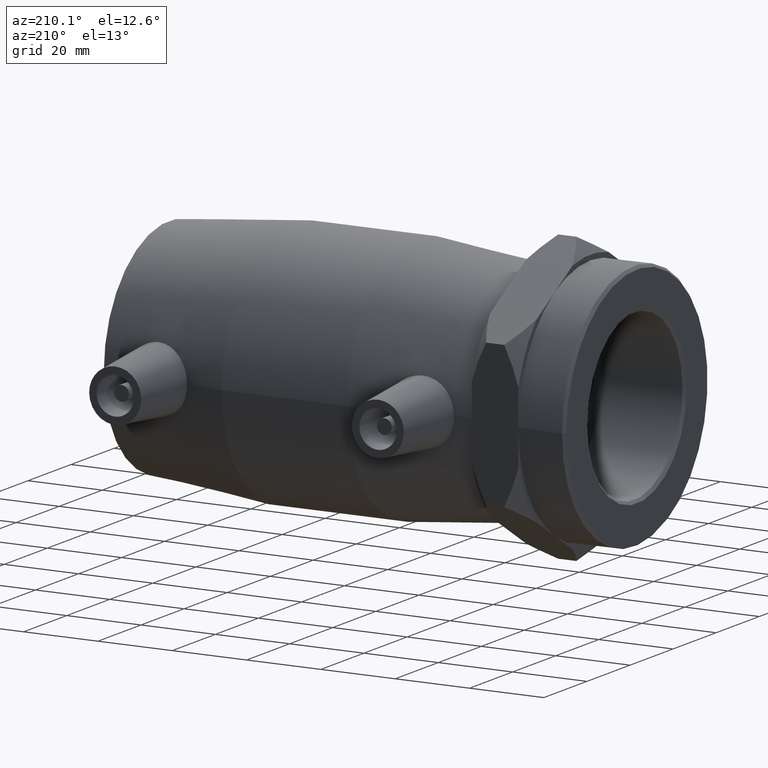
[diagram: clean part render]
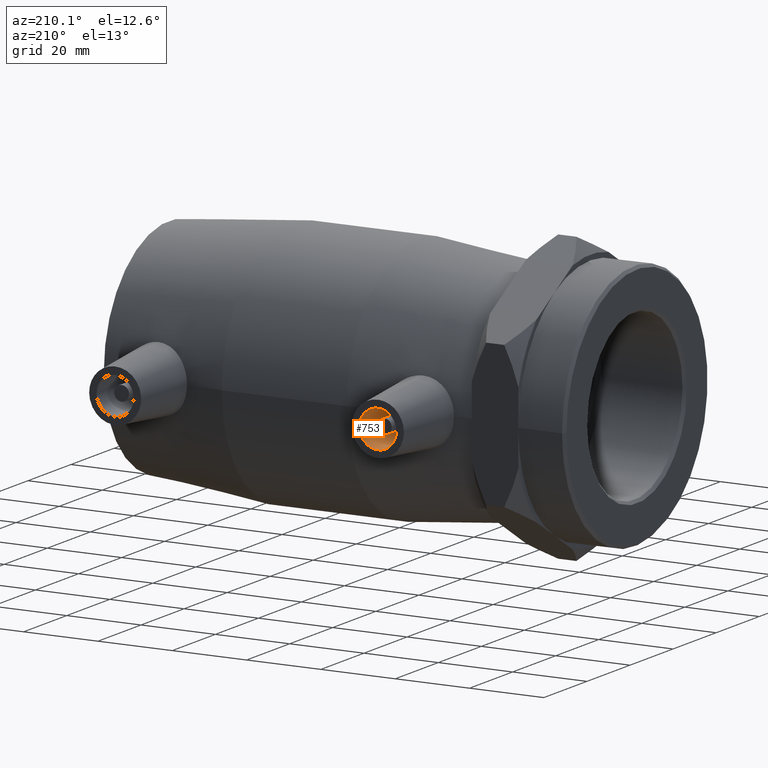
[diagram: same view with one face highlighted and labeled with its STEP entity id]
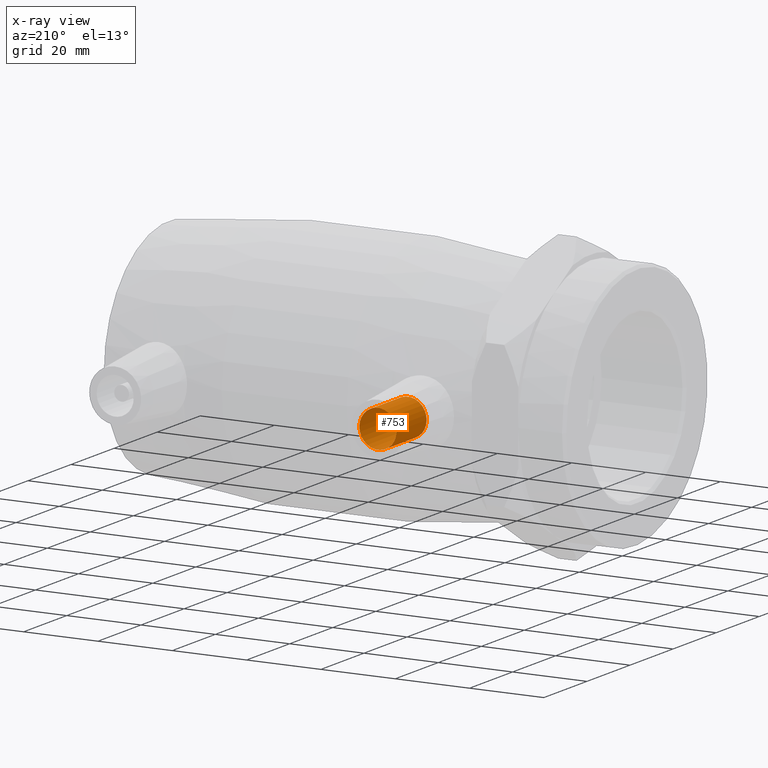
[diagram: x-ray of the same camera — body ghosted, the highlighted face saturated]
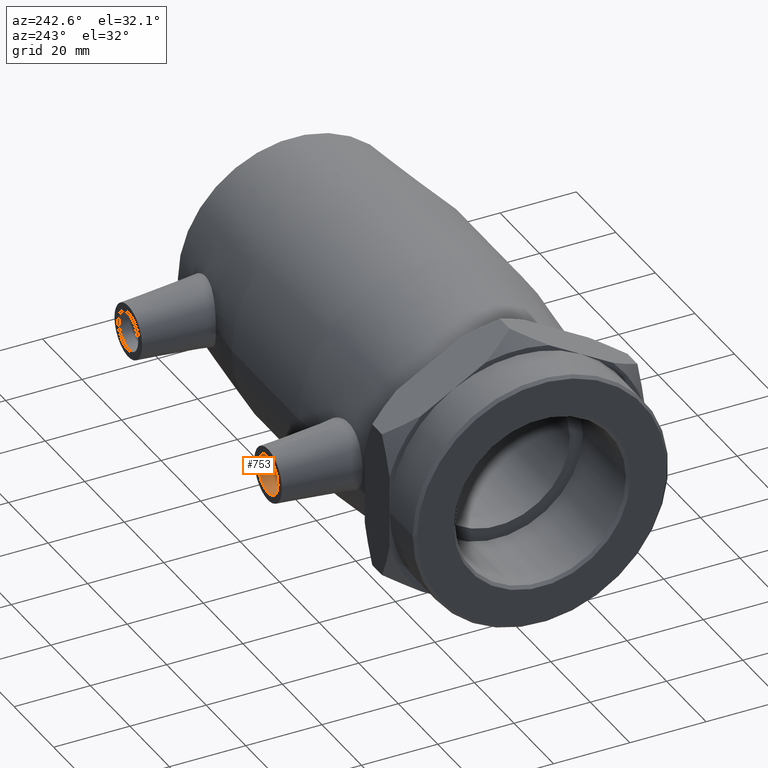
[diagram: same view with one face highlighted and labeled with its STEP entity id]
A machine part, auxiliary view. The second image highlights one B-rep face of the part: STEP entity #753.
The next image is the same camera in x-ray: the body ghosted, the highlighted face saturated — about 0% of this face is hidden behind the body in this view.
A second angle (auxiliary view) of the same face is appended — the face is thin or edge-on in the first view.
In plain terms, the highlighted cylindrical surface (bore or boss wall) has radius 5 mm, axis along (0, -1, 0).
Its self-contained STEP definition (entity closure, byte-faithful):
#96=CYLINDRICAL_SURFACE('',#845,5.);
#138=FACE_BOUND('',#264,.T.);
#194=FACE_OUTER_BOUND('',#263,.T.);
#263=EDGE_LOOP('',(#664));
#264=EDGE_LOOP('',(#665));
#327=CIRCLE('',#846,5.);
#328=CIRCLE('',#847,5.);
#396=VERTEX_POINT('',#1326);
#397=VERTEX_POINT('',#1328);
#491=EDGE_CURVE('',#396,#396,#327,.T.);
#492=EDGE_CURVE('',#397,#397,#328,.T.);
#664=ORIENTED_EDGE('',*,*,#491,.T.);
#665=ORIENTED_EDGE('',*,*,#492,.F.);
#753=ADVANCED_FACE('',(#194,#138),#96,.F.);
#845=AXIS2_PLACEMENT_3D('',#1325,#1047,#1048);
#846=AXIS2_PLACEMENT_3D('',#1327,#1049,#1050);
#847=AXIS2_PLACEMENT_3D('',#1329,#1051,#1052);
#1047=DIRECTION('center_axis',(0.,-1.,0.));
#1048=DIRECTION('ref_axis',(-1.,0.,0.));
#1049=DIRECTION('center_axis',(0.,-1.,0.));
#1050=DIRECTION('ref_axis',(-1.,0.,0.));
#1051=DIRECTION('center_axis',(0.,-1.,0.));
#1052=DIRECTION('ref_axis',(-1.,0.,0.));
#1325=CARTESIAN_POINT('Origin',(-35.35,51.,0.));
#1326=CARTESIAN_POINT('',(-30.35,37.,-6.12323399573677E-16));
#1327=CARTESIAN_POINT('Origin',(-35.35,37.,0.));
#1328=CARTESIAN_POINT('',(-30.35,51.,-6.12323399573677E-16));
#1329=CARTESIAN_POINT('Origin',(-35.35,51.,0.));